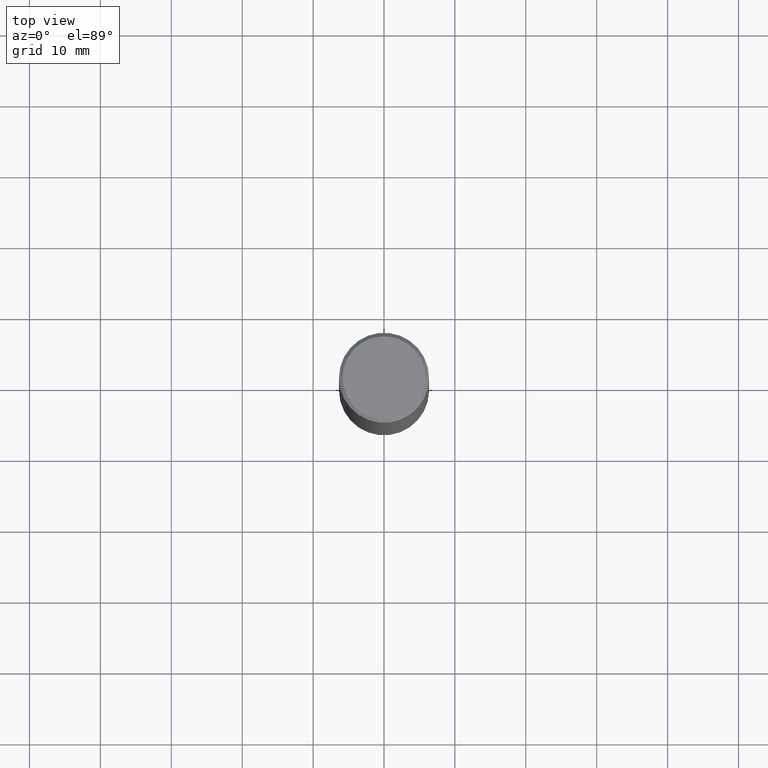
[diagram: clean part render]
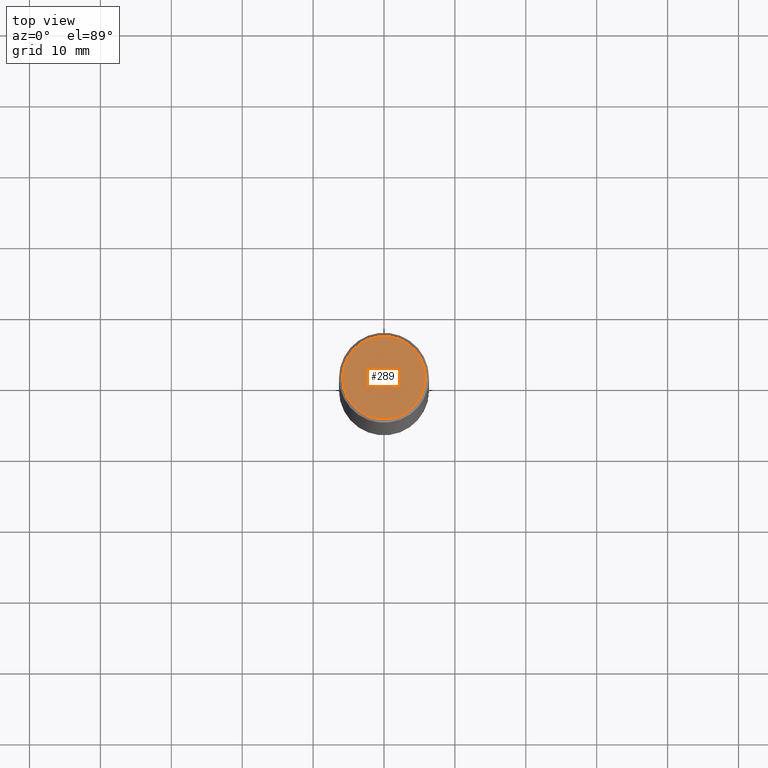
[diagram: same view with one face highlighted and labeled with its STEP entity id]
A machine part, top view. The second image highlights one B-rep face of the part: STEP entity #289.
In plain terms, the highlighted planar face has unit normal (0, -0, -1).
Its self-contained STEP definition (entity closure, byte-faithful):
#28 = DIRECTION ( 'NONE',  ( -1.000000000000000000, 6.982962677686265922E-15, -4.876176775795935793E-29 ) ) ;
#49 = DIRECTION ( 'NONE',  ( 2.438088387897960049E-29, -3.491481338843145188E-15, -1.000000000000000000 ) ) ;
#52 = FACE_OUTER_BOUND ( 'NONE', #288, .T. ) ;
#56 = DIRECTION ( 'NONE',  ( 1.000000000000000000, -6.982962677686266711E-15, 4.876225828469314487E-29 ) ) ;
#83 = CARTESIAN_POINT ( 'NONE',  ( 1.606081415867839292E-15, 0.2299999999999997324, -8.009064516888723911E-16 ) ) ;
#90 = AXIS2_PLACEMENT_3D ( 'NONE', #83, #49, #28 ) ;
#102 = DIRECTION ( 'NONE',  ( 1.000000000000000000, -6.982962677686266711E-15, 4.876225828469314487E-29 ) ) ;
#138 = EDGE_CURVE ( 'NONE', #220, #337, #194, .T. ) ;
#146 = CARTESIAN_POINT ( 'NONE',  ( -1.043851414335219820E-46, 1.490343170380447200E-32, 4.268512490100411279E-18 ) ) ;
#194 = CIRCLE ( 'NONE', #340, 0.2299999999999997324 ) ;
#213 = CARTESIAN_POINT ( 'NONE',  ( -0.2299999999999997324, 1.640996229256270744E-15, 4.268512490089056766E-18 ) ) ;
#214 = CARTESIAN_POINT ( 'NONE',  ( -1.043851414335219820E-46, 1.490343170380447200E-32, 4.268512490100411279E-18 ) ) ;
#220 = VERTEX_POINT ( 'NONE', #213 ) ;
#253 = DIRECTION ( 'NONE',  ( -2.445468806185136597E-29, 3.491481338843145583E-15, 1.000000000000000000 ) ) ;
#258 = CARTESIAN_POINT ( 'NONE',  ( 0.2299999999999997324, -1.681434332853597433E-15, 4.268512490111905999E-18 ) ) ;
#262 = DIRECTION ( 'NONE',  ( -2.445468806185136597E-29, 3.491481338843145583E-15, 1.000000000000000000 ) ) ;
#288 = EDGE_LOOP ( 'NONE', ( #323, #296 ) ) ;
#289 = ADVANCED_FACE ( 'NONE', ( #52 ), #304, .F. ) ;
#296 = ORIENTED_EDGE ( 'NONE', *, *, #365, .T. ) ;
#304 = PLANE ( 'NONE',  #90 ) ;
#315 = CIRCLE ( 'NONE', #320, 0.2299999999999997324 ) ;
#320 = AXIS2_PLACEMENT_3D ( 'NONE', #214, #253, #56 ) ;
#323 = ORIENTED_EDGE ( 'NONE', *, *, #138, .T. ) ;
#337 = VERTEX_POINT ( 'NONE', #258 ) ;
#340 = AXIS2_PLACEMENT_3D ( 'NONE', #146, #262, #102 ) ;
#365 = EDGE_CURVE ( 'NONE', #337, #220, #315, .T. ) ;